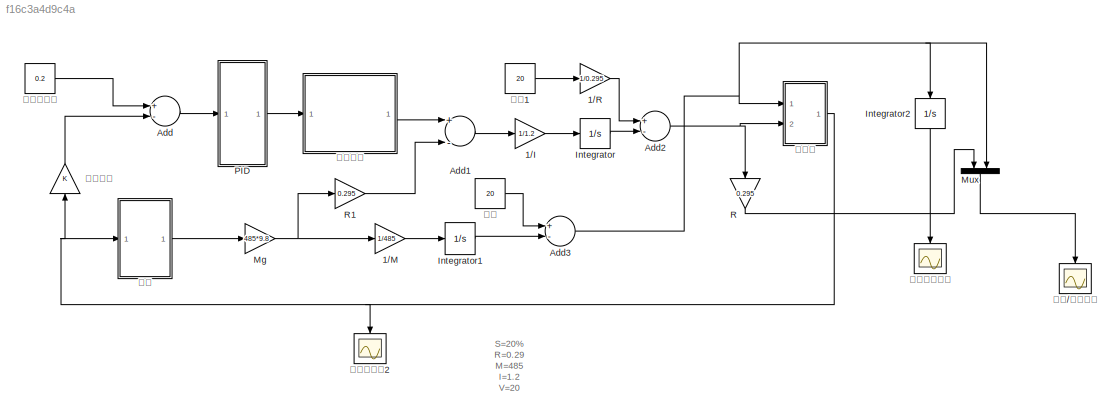
MODEL slx_f16c3a4d9c4a
KIND model
CONFIG AbsTol = auto
CONFIG EnableMultiTasking = off
CONFIG FixedStep = auto
CONFIG MaxStep = auto
CONFIG MinStep = auto
CONFIG RelTol = 1e-3
CONFIG SampleTimeConstraint = Unconstrained
CONFIG Solver = VariableStepAuto
CONFIG SolverName = VariableStepAuto
CONFIG StartTime = 0.0
CONFIG StopTime = 5
BLOCK [Gain] 1//I
  Gain = 1/1.2
  OutDataTypeStr = Inherit: Inherit via internal rule
  ParamDataTypeStr = Inherit: Inherit via internal rule
  SaturateOnIntegerOverflow = off
BLOCK [Gain] 1//M
  Gain = 1/485
  OutDataTypeStr = Inherit: Inherit via internal rule
  ParamDataTypeStr = Inherit: Inherit via internal rule
  SaturateOnIntegerOverflow = off
BLOCK [Gain] 1//R
  Gain = 1/0.295
  OutDataTypeStr = Inherit: Inherit via internal rule
  ParamDataTypeStr = Inherit: Inherit via internal rule
  SaturateOnIntegerOverflow = off
BLOCK [Sum] Add
  InputSameDT = off
  Inputs = +-
  OutDataTypeStr = Inherit: Inherit via internal rule
  Ports = [2, 1]
  SaturateOnIntegerOverflow = off
BLOCK [Sum] Add1
  InputSameDT = off
  Inputs = +-
  OutDataTypeStr = Inherit: Inherit via internal rule
  Ports = [2, 1]
  SaturateOnIntegerOverflow = off
BLOCK [Sum] Add2
  InputSameDT = off
  Inputs = +-
  OutDataTypeStr = Inherit: Inherit via internal rule
  Ports = [2, 1]
  SaturateOnIntegerOverflow = off
BLOCK [Sum] Add3
  InputSameDT = off
  Inputs = +-
  OutDataTypeStr = Inherit: Inherit via internal rule
  Ports = [2, 1]
  SaturateOnIntegerOverflow = off
BLOCK [Integrator] Integrator
  LimitOutput = on
  LowerSaturationLimit = -1000
  Ports = [1, 1]
  UpperSaturationLimit = 1000
BLOCK [Integrator] Integrator1
  LimitOutput = on
  LowerSaturationLimit = -1000
  Ports = [1, 1]
  UpperSaturationLimit = 1000
BLOCK [Integrator] Integrator2
  Ports = [1, 1]
BLOCK [Gain] Mg
  Gain = 485*9.8
  OutDataTypeStr = Inherit: Inherit via internal rule
  ParamDataTypeStr = Inherit: Inherit via internal rule
  SaturateOnIntegerOverflow = off
BLOCK [Mux] Mux
  DisplayOption = bar
  Inputs = 2
  Ports = [2, 1]
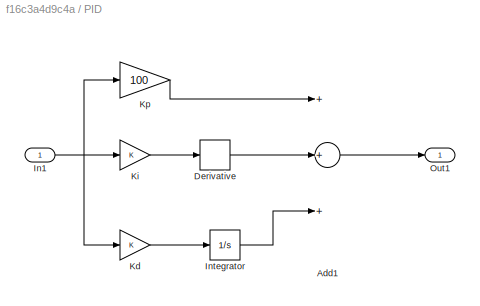
BLOCK [SubSystem] PID
  Ports = [1, 1]
  RequestExecContextInheritance = off
BLOCK [Sum] PID/Add1
  InputSameDT = off
  Inputs = +++
  OutDataTypeStr = Inherit: Inherit via internal rule
  Ports = [3, 1]
  SaturateOnIntegerOverflow = off
BLOCK [Derivative] PID/Derivative
BLOCK [Inport] PID/In1
  IconDisplay = Port number
BLOCK [Integrator] PID/Integrator
  Ports = [1, 1]
BLOCK [Gain] PID/Kd
  OutDataTypeStr = Inherit: Inherit via internal rule
  ParamDataTypeStr = Inherit: Inherit via internal rule
  SaturateOnIntegerOverflow = off
BLOCK [Gain] PID/Ki
  OutDataTypeStr = Inherit: Inherit via internal rule
  ParamDataTypeStr = Inherit: Inherit via internal rule
  SaturateOnIntegerOverflow = off
BLOCK [Gain] PID/Kp 
  Gain = 100
  OutDataTypeStr = Inherit: Inherit via internal rule
  ParamDataTypeStr = Inherit: Inherit via internal rule
  SaturateOnIntegerOverflow = off
BLOCK [Outport] PID/Out1
  IconDisplay = Port number
BLOCK [Gain] R 
  Gain = 0.295
  OutDataTypeStr = Inherit: Inherit via internal rule
  ParamDataTypeStr = Inherit: Inherit via internal rule
  SaturateOnIntegerOverflow = off
BLOCK [Gain] R1
  Gain = 0.295
  OutDataTypeStr = Inherit: Inherit via internal rule
  ParamDataTypeStr = Inherit: Inherit via internal rule
  SaturateOnIntegerOverflow = off
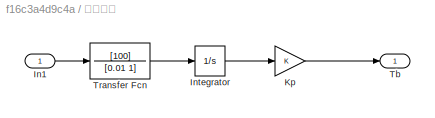
BLOCK [SubSystem] 制动系统
  Ports = [1, 1]
  RequestExecContextInheritance = off
BLOCK [Inport] 制动系统/In1
  IconDisplay = Port number
BLOCK [Integrator] 制动系统/Integrator
  Ports = [1, 1]
BLOCK [Gain] 制动系统/Kp
  OutDataTypeStr = Inherit: Inherit via internal rule
  ParamDataTypeStr = Inherit: Inherit via internal rule
  SaturateOnIntegerOverflow = off
BLOCK [Outport] 制动系统/Tb 
  IconDisplay = Port number
BLOCK [TransferFcn] 制动系统/Transfer Fcn
  Denominator = [0.01 1]
  Numerator = [100]
BLOCK [Scope] 刹车距离曲线
  Floating = off
  NumInputPorts = 1
  Ports = [1]
  ScopeSpecificationString = Simulink.scopes.TimeScopeBlockCfg('CurrentConfiguration', extmgr.ConfigurationSet(extmgr.Configuration('Core','General UI',true),extmgr.Configuration('Core','Source UI',true),extmgr.Configuration('Sources','WiredSimulink',true),extmgr.Configuration('Visuals','Time Domain',true,'SerializedDisplays',{struct('MinYLimReal','-6.44148','MaxYLimReal','52','YLabelReal','','MinYLimMag','0.00000','MaxYLimMa...<+1371ch>
BLOCK [Gain] 控制开关
  OutDataTypeStr = Inherit: Inherit via internal rule
  ParamDataTypeStr = Inherit: Inherit via internal rule
  SaturateOnIntegerOverflow = off
BLOCK [Constant] 最佳滑移率 
  Value = 0.2
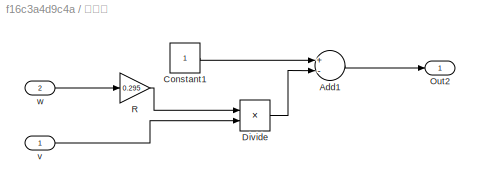
BLOCK [SubSystem] 滑移率
  Ports = [2, 1]
  RequestExecContextInheritance = off
BLOCK [Sum] 滑移率/Add1
  InputSameDT = off
  Inputs = +-
  OutDataTypeStr = Inherit: Inherit via internal rule
  Ports = [2, 1]
  SaturateOnIntegerOverflow = off
BLOCK [Constant] 滑移率/Constant1
BLOCK [Product] 滑移率/Divide
  InputSameDT = off
  Inputs = */
  OutDataTypeStr = Inherit: Inherit via internal rule
  Ports = [2, 1]
  RndMeth = Floor
  SaturateOnIntegerOverflow = off
BLOCK [Outport] 滑移率/Out2
  IconDisplay = Port number
BLOCK [Gain] 滑移率/R
  Gain = 0.295
  OutDataTypeStr = Inherit: Inherit via internal rule
  ParamDataTypeStr = Inherit: Inherit via internal rule
  SaturateOnIntegerOverflow = off
BLOCK [Inport] 滑移率/v
  IconDisplay = Port number
BLOCK [Inport] 滑移率/w
  IconDisplay = Port number
  Port = 2
BLOCK [Scope] 滑移率变化2
  Floating = off
  NumInputPorts = 1
  Ports = [1]
  ScopeSpecificationString = Simulink.scopes.TimeScopeBlockCfg('CurrentConfiguration', extmgr.ConfigurationSet(extmgr.Configuration('Core','General UI',true),extmgr.Configuration('Core','Source UI',true),extmgr.Configuration('Sources','WiredSimulink',true,'DataLoggingVariableName','ScopeData3'),extmgr.Configuration('Visuals','Time Domain',true,'SerializedDisplays',{struct('MinYLimReal','-1','MaxYLimReal','2','YLabelReal','','...<+1415ch>
BLOCK [Scope] 车轮//轮速变化 
  Floating = off
  NumInputPorts = 1
  Ports = [1]
  ScopeSpecificationString = Simulink.scopes.TimeScopeBlockCfg('CurrentConfiguration', extmgr.ConfigurationSet(extmgr.Configuration('Core','General UI',true),extmgr.Configuration('Core','Source UI',true),extmgr.Configuration('Sources','WiredSimulink',true,'DataLoggingVariableName','ScopeData2'),extmgr.Configuration('Visuals','Time Domain',true,'SerializedDisplays',{struct('MinYLimReal','0','MaxYLimReal','25','YLabelReal','','...<+1499ch>
BLOCK [Constant] 车速
  Value = 20
BLOCK [Constant] 车速1
  Value = 20
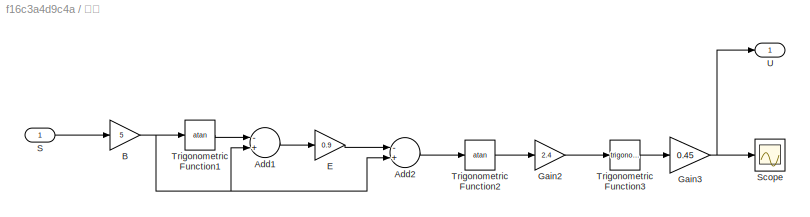
BLOCK [SubSystem] 轮胎
  Ports = [1, 1]
  RequestExecContextInheritance = off
BLOCK [Sum] 轮胎/Add1
  InputSameDT = off
  Inputs = -+
  OutDataTypeStr = Inherit: Inherit via internal rule
  Ports = [2, 1]
  SaturateOnIntegerOverflow = off
BLOCK [Sum] 轮胎/Add2
  InputSameDT = off
  Inputs = -+
  OutDataTypeStr = Inherit: Inherit via internal rule
  Ports = [2, 1]
  SaturateOnIntegerOverflow = off
BLOCK [Gain] 轮胎/B
  Gain = 5
  OutDataTypeStr = Inherit: Inherit via internal rule
  ParamDataTypeStr = Inherit: Inherit via internal rule
  SaturateOnIntegerOverflow = off
BLOCK [Gain] 轮胎/E
  Gain = 0.9
  OutDataTypeStr = Inherit: Inherit via internal rule
  ParamDataTypeStr = Inherit: Inherit via internal rule
  SaturateOnIntegerOverflow = off
BLOCK [Gain] 轮胎/Gain2
  Gain = 2.4
  OutDataTypeStr = Inherit: Inherit via internal rule
  ParamDataTypeStr = Inherit: Inherit via internal rule
  SaturateOnIntegerOverflow = off
BLOCK [Gain] 轮胎/Gain3
  Gain = 0.45
  OutDataTypeStr = Inherit: Inherit via internal rule
  ParamDataTypeStr = Inherit: Inherit via internal rule
  SaturateOnIntegerOverflow = off
BLOCK [Inport] 轮胎/S
  IconDisplay = Port number
BLOCK [Scope] 轮胎/Scope
  Floating = off
  NumInputPorts = 1
  Ports = [1]
  ScopeSpecificationString = Simulink.scopes.TimeScopeBlockCfg('CurrentConfiguration', extmgr.ConfigurationSet(extmgr.Configuration('Core','General UI',true),extmgr.Configuration('Core','Source UI',true),extmgr.Configuration('Sources','WiredSimulink',true,'DataLoggingVariableName','ScopeData1'),extmgr.Configuration('Visuals','Time Domain',true,'SerializedDisplays',{struct('MinYLimReal','-0.05623','MaxYLimReal','0.50606','YLab...<+1364ch>
BLOCK [Trigonometry] 轮胎/Trigonometric Function1
  Operator = atan
  Ports = [1, 1]
BLOCK [Trigonometry] 轮胎/Trigonometric Function2
  Operator = atan
  Ports = [1, 1]
BLOCK [Trigonometry] 轮胎/Trigonometric Function3
  Ports = [1, 1]
BLOCK [Outport] 轮胎/U 
  IconDisplay = Port number
ANNOTATION (root): S=20% R=0.29 M=485 I=1.2 V=20
LINE 1//I:1 -> Integrator:1
LINE 1//M:1 -> Integrator1:1
LINE 1//R:1 -> Add2:1
LINE Add1:1 -> 1//I:1
NET Add2:1 -> R :1, 滑移率:2
NET Add3:1 -> Integrator2:1, Mux:2, 滑移率:1
LINE Add:1 -> PID:1
LINE Integrator1:1 -> Add3:2
LINE Integrator2:1 -> 刹车距离曲线:1
LINE Integrator:1 -> Add2:2
NET Mg:1 -> 1//M:1, R1:1
LINE Mux:1 -> 车轮//轮速变化 :1
LINE PID/Add1:1 -> PID/Out1:1
LINE PID/Derivative:1 -> PID/Add1:2
NET PID/In1:1 -> PID/Kd:1, PID/Ki:1, PID/Kp :1
LINE PID/Integrator:1 -> PID/Add1:3
LINE PID/Kd:1 -> PID/Integrator:1
LINE PID/Ki:1 -> PID/Derivative:1
LINE PID/Kp :1 -> PID/Add1:1
LINE PID:1 -> 制动系统:1
LINE R :1 -> Mux:1
LINE R1:1 -> Add1:2
LINE 制动系统/In1:1 -> 制动系统/Transfer Fcn:1
LINE 制动系统/Integrator:1 -> 制动系统/Kp:1
LINE 制动系统/Kp:1 -> 制动系统/Tb :1
LINE 制动系统/Transfer Fcn:1 -> 制动系统/Integrator:1
LINE 制动系统:1 -> Add1:1
LINE 控制开关:1 -> Add:2
LINE 最佳滑移率 :1 -> Add:1
LINE 滑移率/Add1:1 -> 滑移率/Out2:1
LINE 滑移率/Constant1:1 -> 滑移率/Add1:1
LINE 滑移率/Divide:1 -> 滑移率/Add1:2
LINE 滑移率/R:1 -> 滑移率/Divide:1
LINE 滑移率/v:1 -> 滑移率/Divide:2
LINE 滑移率/w:1 -> 滑移率/R:1
NET 滑移率:1 -> 控制开关:1, 滑移率变化2:1, 轮胎:1
LINE 车速1:1 -> 1//R:1
LINE 车速:1 -> Add3:1
LINE 轮胎/Add1:1 -> 轮胎/E:1
LINE 轮胎/Add2:1 -> 轮胎/Trigonometric Function2:1
NET 轮胎/B:1 -> 轮胎/Add1:2, 轮胎/Add2:2, 轮胎/Trigonometric Function1:1
LINE 轮胎/E:1 -> 轮胎/Add2:1
LINE 轮胎/Gain2:1 -> 轮胎/Trigonometric Function3:1
NET 轮胎/Gain3:1 -> 轮胎/Scope:1, 轮胎/U :1
LINE 轮胎/S:1 -> 轮胎/B:1
LINE 轮胎/Trigonometric Function1:1 -> 轮胎/Add1:1
LINE 轮胎/Trigonometric Function2:1 -> 轮胎/Gain2:1
LINE 轮胎/Trigonometric Function3:1 -> 轮胎/Gain3:1
LINE 轮胎:1 -> Mg:1
note: NET lines group one-source signal fan-out (src -> all destinations, sorted); 1:1 wires keep LINE
